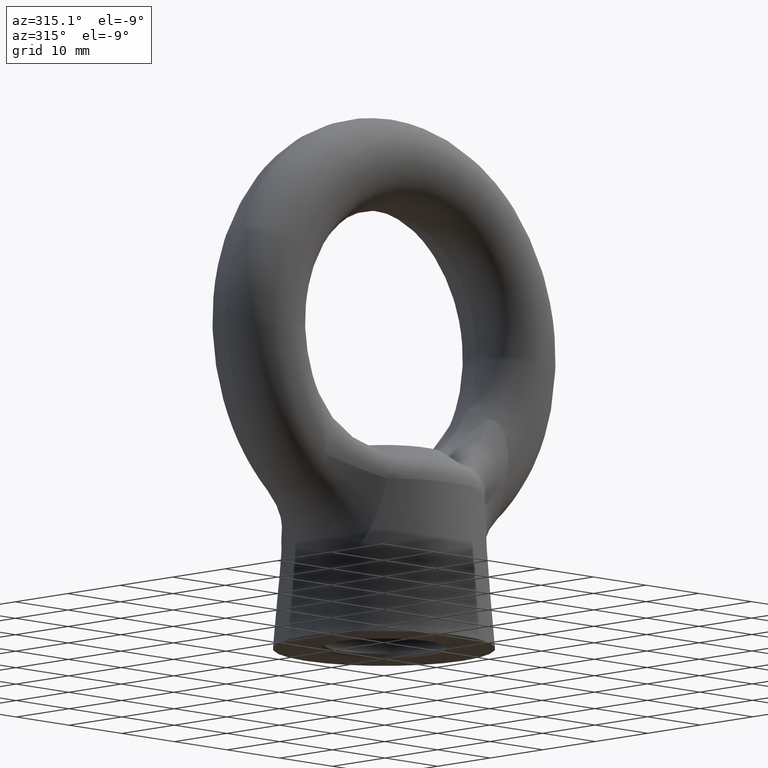
[diagram: clean part render]
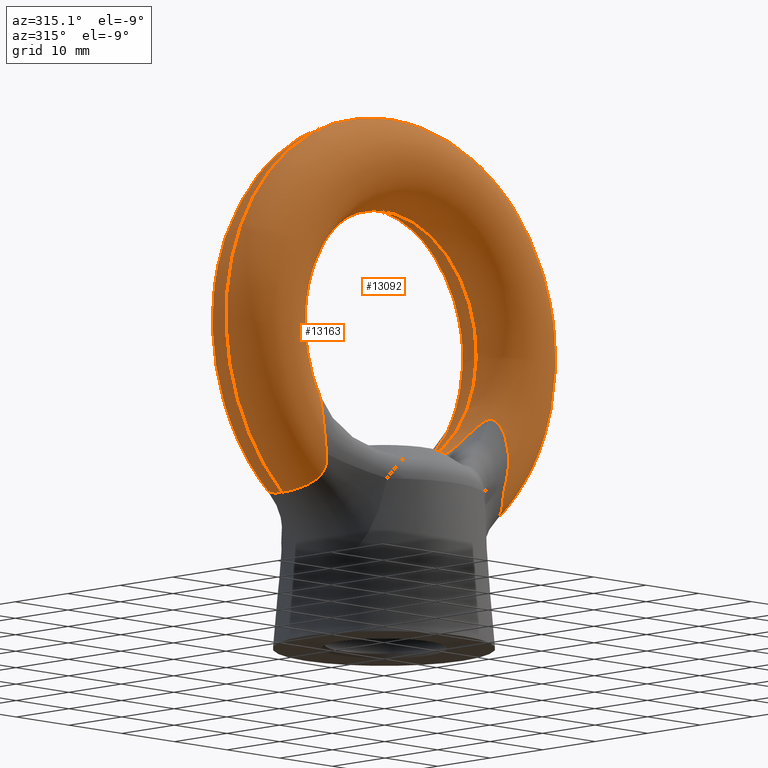
[diagram: same view with one multi-face feature highlighted, each face labeled with its STEP entity id]
A machine part, auxiliary view. The highlighted faces form ONE feature: a constant-radius fillet chain: 2 tangent blend faces with common blend radius 6.25 mm. The faces share edges in the B-rep.
Their STEP definitions:
[1] entity #13163 (Torus):
#7877 = CARTESIAN_POINT ( 'NONE',  ( 8.111039694346169800, 1.587437685473569900, -15.73774275576744800 ) ) ;
#7878 = CARTESIAN_POINT ( 'NONE',  ( 8.877050675783792100, 1.640796551750357500, -15.35871372021576200 ) ) ;
#7879 = CARTESIAN_POINT ( 'NONE',  ( 9.611557705893824600, 1.705393914827899100, -14.93065098489180200 ) ) ;
#7880 = CARTESIAN_POINT ( 'NONE',  ( 11.02122853489527700, 1.867217477117491600, -13.98403742893090400 ) ) ;
#7881 = CARTESIAN_POINT ( 'NONE',  ( 11.69746644432934000, 1.964454972726173500, -13.46338786075106200 ) ) ;
#7882 = CARTESIAN_POINT ( 'NONE',  ( 12.65455403378711100, 2.147803229258524300, -12.63896386355755500 ) ) ;
#7883 = CARTESIAN_POINT ( 'NONE',  ( 12.96483437946012500, 2.215326195808779500, -12.35649845964479700 ) ) ;
#7884 = CARTESIAN_POINT ( 'NONE',  ( 13.57045371240566000, 2.368919328573074100, -11.78069031534976400 ) ) ;
#7885 = CARTESIAN_POINT ( 'NONE',  ( 13.86567700764090800, 2.454779454984167100, -11.48716104974027100 ) ) ;
#7886 = CARTESIAN_POINT ( 'NONE',  ( 14.44652581673483600, 2.656681776269808700, -10.89839972138925200 ) ) ;
#7887 = CARTESIAN_POINT ( 'NONE',  ( 14.73188768323061600, 2.771871324656335100, -10.60192377022217700 ) ) ;
#7888 = CARTESIAN_POINT ( 'NONE',  ( 15.16392750144543900, 2.990702523390906400, -10.17705467096656200 ) ) ;
#7889 = CARTESIAN_POINT ( 'NONE',  ( 15.30744675396981700, 3.070880720529225900, -10.04012331732675100 ) ) ;
#7890 = CARTESIAN_POINT ( 'NONE',  ( 15.59790482079290200, 3.255144549051842300, -9.787617082536176100 ) ) ;
#7891 = CARTESIAN_POINT ( 'NONE',  ( 15.74643954804344400, 3.360181915901106400, -9.669975295900114200 ) ) ;
#7892 = CARTESIAN_POINT ( 'NONE',  ( 15.97394226603087300, 3.547933730310131500, -9.536845725587110000 ) ) ;
#7893 = CARTESIAN_POINT ( 'NONE',  ( 16.04966970211481200, 3.614860396510141300, -9.500435584846695000 ) ) ;
#7894 = CARTESIAN_POINT ( 'NONE',  ( 16.20189517686496600, 3.760407391947568900, -9.451324885078543400 ) ) ;
#7895 = CARTESIAN_POINT ( 'NONE',  ( 16.27760672172197300, 3.838501739769495400, -9.439438757284644800 ) ) ;
#7896 = CARTESIAN_POINT ( 'NONE',  ( 16.42137521235924100, 3.998558444761890500, -9.448072332348942800 ) ) ;
#7897 = CARTESIAN_POINT ( 'NONE',  ( 16.49066409196685300, 4.081966684756051400, -9.469041671484117000 ) ) ;
#7898 = CARTESIAN_POINT ( 'NONE',  ( 16.61557402954128200, 4.242521271216093100, -9.539345349481795500 ) ) ;
#7899 = CARTESIAN_POINT ( 'NONE',  ( 16.67307212306012300, 4.321899963471488500, -9.589288398273812000 ) ) ;
#7900 = CARTESIAN_POINT ( 'NONE',  ( 16.82653295781727500, 4.545061912940892200, -9.765227703158906500 ) ) ;
#7901 = CARTESIAN_POINT ( 'NONE',  ( 16.90759218076230000, 4.678616665513234600, -9.918353659678555100 ) ) ;
#7902 = CARTESIAN_POINT ( 'NONE',  ( 17.04430961157679300, 4.917960560620692900, -10.24969359798501700 ) ) ;
#7903 = CARTESIAN_POINT ( 'NONE',  ( 17.10050854641171400, 5.025166381319327700, -10.43014570516971200 ) ) ;
#7904 = CARTESIAN_POINT ( 'NONE',  ( 17.24581390449134600, 5.316780234065051400, -10.98790691262834300 ) ) ;
#7905 = CARTESIAN_POINT ( 'NONE',  ( 17.31327665560580100, 5.473647284645629400, -11.38331106369006200 ) ) ;
#7906 = CARTESIAN_POINT ( 'NONE',  ( 17.41708387142210100, 5.740757657185831400, -12.19624166517492400 ) ) ;
#7907 = CARTESIAN_POINT ( 'NONE',  ( 17.45183226864463700, 5.848603566488175300, -12.60985788679864300 ) ) ;
#7908 = CARTESIAN_POINT ( 'NONE',  ( 17.49422237156415600, 6.024730697094860000, -13.44814161974023700 ) ) ;
#7909 = CARTESIAN_POINT ( 'NONE',  ( 17.50153390053537100, 6.092908435521232800, -13.87502652674233000 ) ) ;
#7910 = CARTESIAN_POINT ( 'NONE',  ( 17.48855206723205000, 6.192231163593309200, -14.72638065050605000 ) ) ;
#7911 = CARTESIAN_POINT ( 'NONE',  ( 17.46836725311422400, 6.223556941446912700, -15.15085578333782800 ) ) ;
#7912 = CARTESIAN_POINT ( 'NONE',  ( 17.36497183959187400, 6.269493198029857200, -16.42038138290026300 ) ) ;
#7913 = CARTESIAN_POINT ( 'NONE',  ( 17.23954784160143200, 6.236109388039367700, -17.26159901721107200 ) ) ;
#7914 = CARTESIAN_POINT ( 'NONE',  ( 17.04277179703460000, 6.151012195224280000, -18.09589767904829900 ) ) ;
#7940 = B_SPLINE_CURVE_WITH_KNOTS ( 'NONE', 3,
 ( #7914, #7913, #7912, #7911, #7910, #7909, #7908, #7907, #7906, #7905, #7904, #7903, #7902, #7901, #7900, #7899, #7898, #7897, #7896, #7895, #7894, #7893, #7892, #7891, #7890, #7889, #7888, #7887, #7886, #7885, #7884, #7883, #7882, #7881, #7880, #7879, #7878, #7877 ),
 .UNSPECIFIED., .F., .F.,
 ( 4, 2, 2, 2, 2, 2, 2, 2, 2, 2, 2, 2, 2, 2, 2, 2, 2, 2, 4 ),
 ( 0.0000000000000000000, 0.002547673243820209100, 0.003821509865730318400, 0.005095346487640427800, 0.006369183109550535800, 0.007643019731460645600, 0.008279938042415703500, 0.008916856353370760500, 0.009235315508848292500, 0.009553774664325822800, 0.009872233819803353000, 0.01019069297528088500, 0.01082761128623595200, 0.01146452959719102000, 0.01273836621910116500, 0.01401220284101131200, 0.01528603946292145600, 0.01783371270674174300, 0.02038138595056202700 ),
 .UNSPECIFIED. ) ;
#7941 = CARTESIAN_POINT ( 'NONE',  ( 17.04277179703460000, 6.151012195224280000, -18.09589767904829900 ) ) ;
#7942 = CARTESIAN_POINT ( 'NONE',  ( 16.95311205554918000, 6.112238205607139800, -18.47604050845937700 ) ) ;
#7943 = CARTESIAN_POINT ( 'NONE',  ( 16.89125194217588400, 6.057159217524243500, -18.86162937785950400 ) ) ;
#7944 = CARTESIAN_POINT ( 'NONE',  ( 16.87500171211553000, 5.927312403113512000, -19.43398348306588000 ) ) ;
#7945 = CARTESIAN_POINT ( 'NONE',  ( 16.88267183032699100, 5.875723234500640000, -19.62415516973145600 ) ) ;
#7946 = CARTESIAN_POINT ( 'NONE',  ( 16.92664900067186200, 5.754983130849093500, -19.98972230802001000 ) ) ;
#7947 = CARTESIAN_POINT ( 'NONE',  ( 16.96285689485826600, 5.685539577687730000, -20.16659089490268600 ) ) ;
#7948 = CARTESIAN_POINT ( 'NONE',  ( 17.06323072682811700, 5.524901373026971800, -20.50722626260734000 ) ) ;
#7949 = CARTESIAN_POINT ( 'NONE',  ( 17.12762721360508800, 5.433500076670242200, -20.67062729624655400 ) ) ;
#7950 = CARTESIAN_POINT ( 'NONE',  ( 17.27456490243410800, 5.234201629986116300, -20.97250123242061200 ) ) ;
#7951 = CARTESIAN_POINT ( 'NONE',  ( 17.35806445011386100, 5.124824790626980200, -21.11355117864467000 ) ) ;
#7952 = CARTESIAN_POINT ( 'NONE',  ( 17.62311183871156900, 4.774557247408188800, -21.50293335712017400 ) ) ;
#7953 = CARTESIAN_POINT ( 'NONE',  ( 17.81709783172027500, 4.513381910449389500, -21.71768966841167300 ) ) ;
#7954 = CARTESIAN_POINT ( 'NONE',  ( 18.19918300366497700, 3.937557177171242500, -22.08753799249271000 ) ) ;
#7955 = CARTESIAN_POINT ( 'NONE',  ( 18.38228753433401500, 3.630914670358939200, -22.23753078786986800 ) ) ;
#7956 = CARTESIAN_POINT ( 'NONE',  ( 18.63069753655396700, 3.142423178963219300, -22.42695027002430300 ) ) ;
#7957 = CARTESIAN_POINT ( 'NONE',  ( 18.70921020355955000, 2.974811561932972500, -22.48399402095879300 ) ) ;
#7965 = CARTESIAN_POINT ( 'NONE',  ( 18.85581844273030000, 2.629619371804272200, -22.58720285964652400 ) ) ;
#7966 = CARTESIAN_POINT ( 'NONE',  ( 18.92418516439107300, 2.451129391184469600, -22.63353181231373800 ) ) ;
#7967 = CARTESIAN_POINT ( 'NONE',  ( 19.10775450492447200, 1.909922827401024000, -22.75509216573017200 ) ) ;
#7968 = CARTESIAN_POINT ( 'NONE',  ( 19.20248790463329400, 1.539889588704346000, -22.81392465897806000 ) ) ;
#7969 = CARTESIAN_POINT ( 'NONE',  ( 17.04277179703460000, 6.151012195224280000, -18.09589767904829900 ) ) ;
#7972 = CARTESIAN_POINT ( 'NONE',  ( 19.33119322631015500, 0.7809759802542160000, -22.89297971279859900 ) ) ;
#7973 = CARTESIAN_POINT ( 'NONE',  ( 19.36485179142093900, 0.3877032855326346100, -22.91293335861419300 ) ) ;
#7974 = CARTESIAN_POINT ( 'NONE',  ( 19.36485179142080400, -2.264111036967491900E-012, -22.91293335861412200 ) ) ;
#7975 = B_SPLINE_CURVE_WITH_KNOTS ( 'NONE', 3,
 ( #7974, #7973, #7972, #7968, #7967, #7966, #7965, #7957, #7956, #7955, #7954, #7953, #7952, #7951, #7950, #7949, #7948, #7947, #7946, #7945, #7944, #7943, #7942, #7941 ),
 .UNSPECIFIED., .F., .F.,
 ( 4, 2, 2, 2, 2, 2, 2, 2, 2, 2, 2, 4 ),
 ( 0.009352304537785015000, 0.01052074067515671900, 0.01168917681252842200, 0.01227339488121427500, 0.01285761294990012600, 0.01402604908727183600, 0.01519448522464354400, 0.01577870329332940100, 0.01636292136201525700, 0.01694713943070111000, 0.01753135749938696700, 0.01869979363675867600 ),
 .UNSPECIFIED. ) ;
#12492 = CARTESIAN_POINT ( 'NONE',  ( -17.09439175025056900, 5.013363293265662400, -10.40955110482752500 ) ) ;
#12493 = CARTESIAN_POINT ( 'NONE',  ( -17.03715011562819700, 4.904719203633745500, -10.22887495143929600 ) ) ;
#12494 = CARTESIAN_POINT ( 'NONE',  ( -16.89826487496196300, 4.663084896868124200, -9.899654922247412600 ) ) ;
#12495 = CARTESIAN_POINT ( 'NONE',  ( -16.81493675885698000, 4.526757330273071900, -9.746578786266630000 ) ) ;
#12496 = CARTESIAN_POINT ( 'NONE',  ( -16.65781289992850500, 4.300586411085207700, -9.575050532782443100 ) ) ;
#12497 = CARTESIAN_POINT ( 'NONE',  ( -16.59890712237342200, 4.220182988391110600, -9.527075591415290000 ) ) ;
#12498 = CARTESIAN_POINT ( 'NONE',  ( -16.47078785150448600, 4.057639141829226600, -9.461710667581142400 ) ) ;
#12499 = CARTESIAN_POINT ( 'NONE',  ( -16.40123005739350500, 3.975077192505356700, -9.444081537217448000 ) ) ;
#12500 = CARTESIAN_POINT ( 'NONE',  ( -16.18019810619075800, 3.732719797247222800, -9.440621465775516100 ) ) ;
#12501 = CARTESIAN_POINT ( 'NONE',  ( -16.02313715277433200, 3.586749817764413700, -9.504876318892193900 ) ) ;
#12502 = CARTESIAN_POINT ( 'NONE',  ( -15.72250592268966900, 3.342542114641776400, -9.687751591404120800 ) ) ;
#12503 = CARTESIAN_POINT ( 'NONE',  ( -15.57400674776673500, 3.238809136846752900, -9.807060328859115800 ) ) ;
#12504 = CARTESIAN_POINT ( 'NONE',  ( -15.28085567527491800, 3.055408538262048200, -10.06482561417770100 ) ) ;
#12505 = CARTESIAN_POINT ( 'NONE',  ( -15.13765308737072400, 2.976593723816712600, -10.20241387556497000 ) ) ;
#12506 = CARTESIAN_POINT ( 'NONE',  ( -14.70917673538873600, 2.762201382763405100, -10.62535612887652400 ) ) ;
#12507 = CARTESIAN_POINT ( 'NONE',  ( -14.42488092375795700, 2.648333875802509200, -10.92059145458517100 ) ) ;
#12508 = CARTESIAN_POINT ( 'NONE',  ( -13.84355405973236100, 2.447978338930086200, -11.50931385154766700 ) ) ;
#12509 = CARTESIAN_POINT ( 'NONE',  ( -13.54699932117073000, 2.362357481828072800, -11.80366577606515200 ) ) ;
#12510 = CARTESIAN_POINT ( 'NONE',  ( -12.93692658897605300, 2.208915950697682500, -12.38229760324862700 ) ) ;
#12511 = CARTESIAN_POINT ( 'NONE',  ( -12.62566730780290700, 2.141807837083095300, -12.66469655626187300 ) ) ;
#12512 = CARTESIAN_POINT ( 'NONE',  ( -11.67016064369423100, 1.960211869483214500, -13.48508992466458500 ) ) ;
#12513 = CARTESIAN_POINT ( 'NONE',  ( -11.00414795365064100, 1.865057928520018400, -13.99615391087029600 ) ) ;
#12514 = CARTESIAN_POINT ( 'NONE',  ( -9.607297013871303200, 1.705106647830315400, -14.93285550772168500 ) ) ;
#12515 = CARTESIAN_POINT ( 'NONE',  ( -8.876682196791096000, 1.640770884205409600, -15.35889604689332600 ) ) ;
#12516 = CARTESIAN_POINT ( 'NONE',  ( -8.111039694346169800, 1.587437685473575000, -15.73774275576744800 ) ) ;
#12517 = CARTESIAN_POINT ( 'NONE',  ( -17.04277179703460000, 6.151012195224280000, -18.09589767904829900 ) ) ;
#12518 = B_SPLINE_CURVE_WITH_KNOTS ( 'NONE', 3,
 ( #12516, #12515, #12514, #12513, #12512, #12511, #12510, #12509, #12508, #12507, #12506, #12505, #12504, #12503, #12502, #12501, #12500, #12499, #12498, #12497, #12496, #12495, #12494, #12493, #12492, #12567, #12566, #12565, #12564, #12563, #12562, #12561, #12560, #12559, #12558, #12557 ),
 .UNSPECIFIED., .F., .F.,
 ( 4, 2, 2, 2, 2, 2, 2, 2, 2, 2, 2, 2, 2, 2, 2, 2, 2, 4 ),
 ( 0.0000000000000000000, 0.002532923632758627900, 0.005065847265517255800, 0.006332309081896571500, 0.007598770898275888100, 0.008865232714655203700, 0.009498463622844859400, 0.01013169453103451500, 0.01076492543922417200, 0.01108154089331900500, 0.01139815634741383900, 0.01203138725560350100, 0.01266461816379316000, 0.01393107998017248200, 0.01519754179655180200, 0.01773046542931044600, 0.01899692724568977400, 0.02026338906206910300 ),
 .UNSPECIFIED. ) ;
#12530 = CARTESIAN_POINT ( 'NONE',  ( -19.20398942362605200, 1.533535957191950000, -22.81485941853018000 ) ) ;
#12531 = CARTESIAN_POINT ( 'NONE',  ( -19.10710975601693600, 1.911798821237023800, -22.75466404671359700 ) ) ;
#12532 = CARTESIAN_POINT ( 'NONE',  ( -18.86374112916451700, 2.629357814327272400, -22.59350669302708400 ) ) ;
#12533 = CARTESIAN_POINT ( 'NONE',  ( -18.71669795624355000, 2.972925421500441300, -22.49244585332153800 ) ) ;
#12534 = CARTESIAN_POINT ( 'NONE',  ( -18.38260925855518800, 3.630658305006376100, -22.23785736102296800 ) ) ;
#12535 = CARTESIAN_POINT ( 'NONE',  ( -18.19707127001715500, 3.940735206080624700, -22.08548962799375600 ) ) ;
#12536 = CARTESIAN_POINT ( 'NONE',  ( -17.91373961735210700, 4.367739317010738800, -21.81123848703569800 ) ) ;
#12537 = CARTESIAN_POINT ( 'NONE',  ( -17.81819513584930800, 4.504309705674773800, -21.71187117026612900 ) ) ;
#12538 = CARTESIAN_POINT ( 'NONE',  ( -17.62888353383863600, 4.765889005356906500, -21.49313357080669500 ) ) ;
#12539 = CARTESIAN_POINT ( 'NONE',  ( -17.53480404490485300, 4.891260074294396400, -21.37323152869047500 ) ) ;
#12540 = CARTESIAN_POINT ( 'NONE',  ( -17.35756464424424900, 5.125483688448048800, -21.11278532567025200 ) ) ;
#12541 = CARTESIAN_POINT ( 'NONE',  ( -17.27416151253787600, 5.234749343787799900, -20.97166800601691600 ) ) ;
#12542 = CARTESIAN_POINT ( 'NONE',  ( -17.12806355700545800, 5.432907666622764300, -20.67152822247151200 ) ) ;
#12543 = CARTESIAN_POINT ( 'NONE',  ( -17.06484824523459000, 5.522513536142704500, -20.51176390515909600 ) ) ;
#12544 = CARTESIAN_POINT ( 'NONE',  ( -16.96387995250271500, 5.683706637746454700, -20.17098986080450000 ) ) ;
#12545 = CARTESIAN_POINT ( 'NONE',  ( -16.92655022206212900, 5.755080137274556600, -19.98962445138507200 ) ) ;
#12546 = CARTESIAN_POINT ( 'NONE',  ( -16.88238577102826500, 5.876684329007404500, -19.62104768280253700 ) ) ;
#12547 = CARTESIAN_POINT ( 'NONE',  ( -16.87493281315705200, 5.928100269409070800, -19.43095498714880900 ) ) ;
#12553 = CARTESIAN_POINT ( 'NONE',  ( -16.89169284103761400, 6.057968228145902900, -18.85716227443033700 ) ) ;
#12554 = CARTESIAN_POINT ( 'NONE',  ( -16.95313379084433000, 6.112247605189320900, -18.47594835431687300 ) ) ;
#12555 = CARTESIAN_POINT ( 'NONE',  ( -17.04277179703460000, 6.151012195224280000, -18.09589767904829900 ) ) ;
#12556 = B_SPLINE_CURVE_WITH_KNOTS ( 'NONE', 3,
 ( #12555, #12554, #12553, #12547, #12546, #12545, #12544, #12543, #12542, #12541, #12540, #12539, #12538, #12537, #12536, #12535, #12534, #12533, #12532, #12531, #12530, #12596, #12595, #12594 ),
 .UNSPECIFIED., .F., .F.,
 ( 4, 2, 2, 2, 2, 2, 2, 2, 2, 2, 2, 4 ),
 ( 0.0000000000000000000, 0.001169038067223129000, 0.001753557100834693200, 0.002338076134446257200, 0.002922595168057821200, 0.003507114201669385600, 0.004091633235280949100, 0.004676152268892513500, 0.005845190336115646700, 0.007014228403338779900, 0.008183266470561913900, 0.009352304537785046200 ),
 .UNSPECIFIED. ) ;
#12557 = CARTESIAN_POINT ( 'NONE',  ( -17.04277179703460000, 6.151012195224280000, -18.09589767904829900 ) ) ;
#12558 = CARTESIAN_POINT ( 'NONE',  ( -17.14134282389802900, 6.193639933257354200, -17.67797243825434400 ) ) ;
#12559 = CARTESIAN_POINT ( 'NONE',  ( -17.22218837957598200, 6.223411038292580200, -17.25672796667097900 ) ) ;
#12560 = CARTESIAN_POINT ( 'NONE',  ( -17.35217542595722400, 6.253667041882924800, -16.40805854493315900 ) ) ;
#12561 = CARTESIAN_POINT ( 'NONE',  ( -17.40140720904229700, 6.254127769587931600, -15.97950670511449500 ) ) ;
#12562 = CARTESIAN_POINT ( 'NONE',  ( -17.50459713303730400, 6.205747314589184600, -14.69247961850472700 ) ) ;
#12563 = CARTESIAN_POINT ( 'NONE',  ( -17.51517308195389000, 6.109353692984738500, -13.84437779262218600 ) ) ;
#12564 = CARTESIAN_POINT ( 'NONE',  ( -17.45039198008589300, 5.843876852509534800, -12.59074679657611100 ) ) ;
#12565 = CARTESIAN_POINT ( 'NONE',  ( -17.41481085278458000, 5.734211361053390900, -12.17316483598339100 ) ) ;
#12566 = CARTESIAN_POINT ( 'NONE',  ( -17.30975759477318500, 5.465329497170234400, -11.36132989875053700 ) ) ;
#12567 = CARTESIAN_POINT ( 'NONE',  ( -17.24190867375001400, 5.308071033144075000, -10.96759668570014800 ) ) ;
#12594 = CARTESIAN_POINT ( 'NONE',  ( -19.36485179142080400, 2.264335115502151900E-012, -22.91293335861412200 ) ) ;
#12595 = CARTESIAN_POINT ( 'NONE',  ( -19.36485179142067300, 0.3879030141946325200, -22.91293335861404000 ) ) ;
#12596 = CARTESIAN_POINT ( 'NONE',  ( -19.33225393210249600, 0.7721711207355761400, -22.89361850442664400 ) ) ;
#13025 = VERTEX_POINT ( 'NONE', #13172 ) ;
#13029 = EDGE_CURVE ( 'NONE', #13025, #13073, #13299, .T. ) ;
#13032 = EDGE_CURVE ( 'NONE', #13071, #13034, #13247, .T. ) ;
#13034 = VERTEX_POINT ( 'NONE', #13240 ) ;
#13071 = VERTEX_POINT ( 'NONE', #13470 ) ;
#13073 = VERTEX_POINT ( 'NONE', #13454 ) ;
#13074 = EDGE_CURVE ( 'NONE', #13073, #13071, #13606, .T. ) ;
#13080 = EDGE_CURVE ( 'NONE', #13097, #13081, #13557, .T. ) ;
#13081 = VERTEX_POINT ( 'NONE', #13552 ) ;
#13097 = VERTEX_POINT ( 'NONE', #13423 ) ;
#13163 = ADVANCED_FACE ( 'NONE', ( #13639 ), #13616, .T. ) ;
#13172 = CARTESIAN_POINT ( 'NONE',  ( 8.111039694346169800, 1.587437685473569900, -15.73774275576744800 ) ) ;
#13218 = EDGE_LOOP ( 'NONE', ( #13219, #13220, #13228, #13230, #13231, #13232, #13305, #13308 ) ) ;
#13219 = ORIENTED_EDGE ( 'NONE', *, *, #13080, .F. ) ;
#13220 = ORIENTED_EDGE ( 'NONE', *, *, #13221, .T. ) ;
#13221 = EDGE_CURVE ( 'NONE', #13097, #13227, #7975, .T. ) ;
#13227 = VERTEX_POINT ( 'NONE', #7969 ) ;
#13228 = ORIENTED_EDGE ( 'NONE', *, *, #13229, .T. ) ;
#13229 = EDGE_CURVE ( 'NONE', #13227, #13025, #7940, .T. ) ;
#13230 = ORIENTED_EDGE ( 'NONE', *, *, #13029, .T. ) ;
#13231 = ORIENTED_EDGE ( 'NONE', *, *, #13074, .T. ) ;
#13232 = ORIENTED_EDGE ( 'NONE', *, *, #13032, .T. ) ;
#13240 = CARTESIAN_POINT ( 'NONE',  ( -8.111039694346169800, 1.587437685473575000, -15.73774275576744800 ) ) ;
#13243 = CARTESIAN_POINT ( 'NONE',  ( -8.111039694346169800, 1.587437685473575000, -15.73774275576744800 ) ) ;
#13244 = CARTESIAN_POINT ( 'NONE',  ( -8.034739435842125100, 1.067064728757684900, -15.62333490523499800 ) ) ;
#13245 = CARTESIAN_POINT ( 'NONE',  ( -8.000004606485253700, 0.5378854802323680400, -15.56437998610500500 ) ) ;
#13246 = CARTESIAN_POINT ( 'NONE',  ( -8.000000000000000000, 0.0000000000000000000, -15.56437700000010200 ) ) ;
#13247 = B_SPLINE_CURVE_WITH_KNOTS ( 'NONE', 3,
 ( #13246, #13245, #13244, #13243 ),
 .UNSPECIFIED., .F., .F.,
 ( 4, 4 ),
 ( 0.008607283311470995100, 0.01020782760571693900 ),
 .UNSPECIFIED. ) ;
#13248 = CARTESIAN_POINT ( 'NONE',  ( 8.000000000000000000, 0.0000000000000000000, -15.56437700000015000 ) ) ;
#13249 = CARTESIAN_POINT ( 'NONE',  ( 8.000004650171266700, 0.2682021957783509200, -15.56438005725637200 ) ) ;
#13250 = CARTESIAN_POINT ( 'NONE',  ( 8.009119476214849000, 0.5383928130978464800, -15.57938130876970800 ) ) ;
#13251 = CARTESIAN_POINT ( 'NONE',  ( 8.045737007442706800, 1.068063597566315500, -15.63773547490219700 ) ) ;
#13252 = CARTESIAN_POINT ( 'NONE',  ( 8.073215190745683500, 1.329471996224379700, -15.68102708744299000 ) ) ;
#13253 = CARTESIAN_POINT ( 'NONE',  ( 8.111039694346169800, 1.587437685473569900, -15.73774275576744800 ) ) ;
#13299 = B_SPLINE_CURVE_WITH_KNOTS ( 'NONE', 3,
 ( #13253, #13252, #13251, #13250, #13249, #13248 ),
 .UNSPECIFIED., .F., .F.,
 ( 4, 2, 4 ),
 ( 0.007011151935412299900, 0.007809217623441650100, 0.008607283311471000300 ),
 .UNSPECIFIED. ) ;
#13305 = ORIENTED_EDGE ( 'NONE', *, *, #13306, .T. ) ;
#13306 = EDGE_CURVE ( 'NONE', #13034, #13307, #12518, .T. ) ;
#13307 = VERTEX_POINT ( 'NONE', #12517 ) ;
#13308 = ORIENTED_EDGE ( 'NONE', *, *, #13309, .T. ) ;
#13309 = EDGE_CURVE ( 'NONE', #13307, #13081, #12556, .T. ) ;
#13423 = CARTESIAN_POINT ( 'NONE',  ( 19.36485179142080400, -2.264111036967491900E-012, -22.91293335861412200 ) ) ;
#13454 = CARTESIAN_POINT ( 'NONE',  ( 8.000000000000000000, 0.0000000000000000000, -15.56437700000015000 ) ) ;
#13470 = CARTESIAN_POINT ( 'NONE',  ( -8.000000000000000000, 0.0000000000000000000, -15.56437700000010200 ) ) ;
#13552 = CARTESIAN_POINT ( 'NONE',  ( -19.36485179142080400, 2.264335115502151900E-012, -22.91293335861412200 ) ) ;
#13553 = DIRECTION ( 'NONE',  ( 0.0000000000000000000, 0.0000000000000000000, -1.000000000000000000 ) ) ;
#13554 = DIRECTION ( 'NONE',  ( 0.0000000000000000000, -1.000000000000000000, 0.0000000000000000000 ) ) ;
#13555 = CARTESIAN_POINT ( 'NONE',  ( 0.0000000000000000000, 0.0000000000000000000, 0.0000000000000000000 ) ) ;
#13556 = AXIS2_PLACEMENT_3D ( 'NONE', #13555, #13554, #13553 ) ;
#13557 = CIRCLE ( 'NONE', #13556, 29.99999999999974800 ) ;
#13602 = DIRECTION ( 'NONE',  ( 0.0000000000000000000, 0.0000000000000000000, -1.000000000000000000 ) ) ;
#13603 = DIRECTION ( 'NONE',  ( 0.0000000000000000000, -1.000000000000000000, 0.0000000000000000000 ) ) ;
#13604 = CARTESIAN_POINT ( 'NONE',  ( 0.0000000000000000000, 7.653789711389857900E-016, 0.0000000000000000000 ) ) ;
#13605 = AXIS2_PLACEMENT_3D ( 'NONE', #13604, #13603, #13602 ) ;
#13606 = CIRCLE ( 'NONE', #13605, 17.49999999999975100 ) ;
#13616 = TOROIDAL_SURFACE ( 'NONE', #13638, 23.74999999999975100, 6.250000000000000000 ) ;
#13617 = DIRECTION ( 'NONE',  ( 0.0000000000000000000, 0.0000000000000000000, -1.000000000000000000 ) ) ;
#13618 = DIRECTION ( 'NONE',  ( 0.0000000000000000000, -1.000000000000000000, 0.0000000000000000000 ) ) ;
#13619 = CARTESIAN_POINT ( 'NONE',  ( 0.0000000000000000000, 0.0000000000000000000, 0.0000000000000000000 ) ) ;
#13638 = AXIS2_PLACEMENT_3D ( 'NONE', #13619, #13618, #13617 ) ;
#13639 = FACE_OUTER_BOUND ( 'NONE', #13218, .T. ) ;
[2] entity #13092 (Torus):
#13069 = ORIENTED_EDGE ( 'NONE', *, *, #13070, .T. ) ;
#13070 = EDGE_CURVE ( 'NONE', #13079, #13071, #13471, .T. ) ;
#13071 = VERTEX_POINT ( 'NONE', #13470 ) ;
#13072 = ORIENTED_EDGE ( 'NONE', *, *, #13074, .F. ) ;
#13073 = VERTEX_POINT ( 'NONE', #13454 ) ;
#13074 = EDGE_CURVE ( 'NONE', #13073, #13071, #13606, .T. ) ;
#13075 = ORIENTED_EDGE ( 'NONE', *, *, #13085, .T. ) ;
#13077 = ORIENTED_EDGE ( 'NONE', *, *, #13078, .T. ) ;
#13078 = EDGE_CURVE ( 'NONE', #13084, #13079, #13601, .T. ) ;
#13079 = VERTEX_POINT ( 'NONE', #13600 ) ;
#13080 = EDGE_CURVE ( 'NONE', #13097, #13081, #13557, .T. ) ;
#13081 = VERTEX_POINT ( 'NONE', #13552 ) ;
#13082 = ORIENTED_EDGE ( 'NONE', *, *, #13083, .T. ) ;
#13083 = EDGE_CURVE ( 'NONE', #13081, #13084, #13541, .T. ) ;
#13084 = VERTEX_POINT ( 'NONE', #13542 ) ;
#13085 = EDGE_CURVE ( 'NONE', #13073, #13086, #13536, .T. ) ;
#13086 = VERTEX_POINT ( 'NONE', #13537 ) ;
#13087 = ORIENTED_EDGE ( 'NONE', *, *, #13088, .T. ) ;
#13088 = EDGE_CURVE ( 'NONE', #13086, #13098, #13515, .T. ) ;
#13092 = ADVANCED_FACE ( 'NONE', ( #13429 ), #13427, .T. ) ;
#13093 = EDGE_LOOP ( 'NONE', ( #13094, #13096, #13082, #13077, #13069, #13072, #13075, #13087 ) ) ;
#13094 = ORIENTED_EDGE ( 'NONE', *, *, #13095, .T. ) ;
#13095 = EDGE_CURVE ( 'NONE', #13098, #13097, #13422, .T. ) ;
#13096 = ORIENTED_EDGE ( 'NONE', *, *, #13080, .T. ) ;
#13097 = VERTEX_POINT ( 'NONE', #13423 ) ;
#13098 = VERTEX_POINT ( 'NONE', #13421 ) ;
#13391 = CARTESIAN_POINT ( 'NONE',  ( 19.36485179142080400, -2.264111036967491900E-012, -22.91293335861412200 ) ) ;
#13392 = CARTESIAN_POINT ( 'NONE',  ( 19.36485179142067300, -0.3879030141946318600, -22.91293335861403000 ) ) ;
#13393 = CARTESIAN_POINT ( 'NONE',  ( 19.33225393210249600, -0.7721711207355783600, -22.89361850442665500 ) ) ;
#13394 = CARTESIAN_POINT ( 'NONE',  ( 19.20398942362603700, -1.533535957191949800, -22.81485941853016900 ) ) ;
#13395 = CARTESIAN_POINT ( 'NONE',  ( 19.10710975601693600, -1.911798821237025200, -22.75466404671360400 ) ) ;
#13396 = CARTESIAN_POINT ( 'NONE',  ( 18.86374112916450900, -2.629357814327273300, -22.59350669302706600 ) ) ;
#13397 = CARTESIAN_POINT ( 'NONE',  ( 18.71669795624354300, -2.972925421500443000, -22.49244585332153400 ) ) ;
#13398 = CARTESIAN_POINT ( 'NONE',  ( 18.38260925855518500, -3.630658305006380100, -22.23785736102297200 ) ) ;
#13399 = CARTESIAN_POINT ( 'NONE',  ( 18.19707127001715500, -3.940735206080630000, -22.08548962799375600 ) ) ;
#13400 = CARTESIAN_POINT ( 'NONE',  ( 17.91373961735210000, -4.367739317010743200, -21.81123848703569500 ) ) ;
#13401 = CARTESIAN_POINT ( 'NONE',  ( 17.81819513584931200, -4.504309705674778300, -21.71187117026612900 ) ) ;
#13402 = CARTESIAN_POINT ( 'NONE',  ( 17.62888353383861800, -4.765889005356911800, -21.49313357080668000 ) ) ;
#13403 = CARTESIAN_POINT ( 'NONE',  ( 17.53480404490484500, -4.891260074294403500, -21.37323152869046400 ) ) ;
#13404 = CARTESIAN_POINT ( 'NONE',  ( 17.35756464424425300, -5.125483688448054100, -21.11278532567024500 ) ) ;
#13405 = CARTESIAN_POINT ( 'NONE',  ( 17.27416151253788000, -5.234749343787800800, -20.97166800601691600 ) ) ;
#13406 = CARTESIAN_POINT ( 'NONE',  ( 17.12806355700545800, -5.432907666622767800, -20.67152822247150100 ) ) ;
#13407 = CARTESIAN_POINT ( 'NONE',  ( 17.06484824523459000, -5.522513536142709800, -20.51176390515908200 ) ) ;
#13408 = CARTESIAN_POINT ( 'NONE',  ( 16.96387995250271500, -5.683706637746459100, -20.17098986080447900 ) ) ;
#13409 = CARTESIAN_POINT ( 'NONE',  ( 16.92655022206211900, -5.755080137274559200, -19.98962445138506200 ) ) ;
#13410 = CARTESIAN_POINT ( 'NONE',  ( 16.88238577102826500, -5.876684329007409800, -19.62104768280253700 ) ) ;
#13417 = CARTESIAN_POINT ( 'NONE',  ( 16.87493281315704900, -5.928100269409066300, -19.43095498714879800 ) ) ;
#13418 = CARTESIAN_POINT ( 'NONE',  ( 16.89169284103761000, -6.057968228145899300, -18.85716227443033000 ) ) ;
#13419 = CARTESIAN_POINT ( 'NONE',  ( 16.95313379084431900, -6.112247605189319100, -18.47594835431686600 ) ) ;
#13420 = CARTESIAN_POINT ( 'NONE',  ( 17.04277179703460000, -6.151012195224280000, -18.09589767904829900 ) ) ;
#13421 = CARTESIAN_POINT ( 'NONE',  ( 17.04277179703460000, -6.151012195224280000, -18.09589767904829900 ) ) ;
#13422 = B_SPLINE_CURVE_WITH_KNOTS ( 'NONE', 3,
 ( #13420, #13419, #13418, #13417, #13410, #13409, #13408, #13407, #13406, #13405, #13404, #13403, #13402, #13401, #13400, #13399, #13398, #13397, #13396, #13395, #13394, #13393, #13392, #13391 ),
 .UNSPECIFIED., .F., .F.,
 ( 4, 2, 2, 2, 2, 2, 2, 2, 2, 2, 2, 4 ),
 ( 0.0000000000000000000, 0.001169038067223127100, 0.001753557100834690200, 0.002338076134446253700, 0.002922595168057817300, 0.003507114201669380400, 0.004091633235280944800, 0.004676152268892507500, 0.005845190336115634600, 0.007014228403338760800, 0.008183266470561889600, 0.009352304537785015000 ),
 .UNSPECIFIED. ) ;
#13423 = CARTESIAN_POINT ( 'NONE',  ( 19.36485179142080400, -2.264111036967491900E-012, -22.91293335861412200 ) ) ;
#13424 = DIRECTION ( 'NONE',  ( 0.0000000000000000000, 0.0000000000000000000, -1.000000000000000000 ) ) ;
#13425 = DIRECTION ( 'NONE',  ( 0.0000000000000000000, -1.000000000000000000, 0.0000000000000000000 ) ) ;
#13426 = AXIS2_PLACEMENT_3D ( 'NONE', #13428, #13425, #13424 ) ;
#13427 = TOROIDAL_SURFACE ( 'NONE', #13426, 23.74999999999975100, 6.250000000000000000 ) ;
#13428 = CARTESIAN_POINT ( 'NONE',  ( 0.0000000000000000000, 0.0000000000000000000, 0.0000000000000000000 ) ) ;
#13429 = FACE_OUTER_BOUND ( 'NONE', #13093, .T. ) ;
#13451 = CARTESIAN_POINT ( 'NONE',  ( -8.045737007442703300, -1.068063597566312900, -15.63773547490219300 ) ) ;
#13452 = CARTESIAN_POINT ( 'NONE',  ( -8.073215190745678200, -1.329471996224376600, -15.68102708744298600 ) ) ;
#13453 = CARTESIAN_POINT ( 'NONE',  ( -8.111039694346160900, -1.587437685473565000, -15.73774275576744800 ) ) ;
#13454 = CARTESIAN_POINT ( 'NONE',  ( 8.000000000000000000, 0.0000000000000000000, -15.56437700000015000 ) ) ;
#13462 = CARTESIAN_POINT ( 'NONE',  ( 17.04277179703460000, -6.151012195224280000, -18.09589767904829900 ) ) ;
#13463 = CARTESIAN_POINT ( 'NONE',  ( 17.14134282389802500, -6.193639933257352400, -17.67797243825434000 ) ) ;
#13464 = CARTESIAN_POINT ( 'NONE',  ( 17.22218837957597500, -6.223411038292576700, -17.25672796667097200 ) ) ;
#13465 = CARTESIAN_POINT ( 'NONE',  ( 17.35217542595722400, -6.253667041882923000, -16.40805854493315900 ) ) ;
#13466 = CARTESIAN_POINT ( 'NONE',  ( 17.40140720904229000, -6.254127769587932500, -15.97950670511449500 ) ) ;
#13467 = CARTESIAN_POINT ( 'NONE',  ( 17.50459713303729700, -6.205747314589185500, -14.69247961850473200 ) ) ;
#13468 = CARTESIAN_POINT ( 'NONE',  ( 17.51517308195389000, -6.109353692984737600, -13.84437779262219300 ) ) ;
#13470 = CARTESIAN_POINT ( 'NONE',  ( -8.000000000000000000, 0.0000000000000000000, -15.56437700000010200 ) ) ;
#13471 = B_SPLINE_CURVE_WITH_KNOTS ( 'NONE', 3,
 ( #13453, #13452, #13451, #13609, #13608, #13607 ),
 .UNSPECIFIED., .F., .F.,
 ( 4, 2, 4 ),
 ( 0.007011151935412306000, 0.007809217623441650100, 0.008607283311470995100 ),
 .UNSPECIFIED. ) ;
#13476 = CARTESIAN_POINT ( 'NONE',  ( 17.45039198008589700, -5.843876852509538400, -12.59074679657612000 ) ) ;
#13477 = CARTESIAN_POINT ( 'NONE',  ( 17.41481085278458700, -5.734211361053395400, -12.17316483598339300 ) ) ;
#13478 = CARTESIAN_POINT ( 'NONE',  ( 17.30975759477319500, -5.465329497170240600, -11.36132989875054000 ) ) ;
#13479 = CARTESIAN_POINT ( 'NONE',  ( 17.24190867375002900, -5.308071033144079500, -10.96759668570014800 ) ) ;
#13480 = CARTESIAN_POINT ( 'NONE',  ( 17.09439175025058000, -5.013363293265668700, -10.40955110482752500 ) ) ;
#13481 = CARTESIAN_POINT ( 'NONE',  ( 17.03715011562820400, -4.904719203633753500, -10.22887495143930700 ) ) ;
#13482 = CARTESIAN_POINT ( 'NONE',  ( 16.89826487496196700, -4.663084896868132200, -9.899654922247419700 ) ) ;
#13483 = CARTESIAN_POINT ( 'NONE',  ( 16.81493675885699400, -4.526757330273079000, -9.746578786266638900 ) ) ;
#13484 = CARTESIAN_POINT ( 'NONE',  ( 16.65781289992851200, -4.300586411085213000, -9.575050532782443100 ) ) ;
#13485 = CARTESIAN_POINT ( 'NONE',  ( 16.59890712237342600, -4.220182988391112400, -9.527075591415297100 ) ) ;
#13486 = CARTESIAN_POINT ( 'NONE',  ( 16.47078785150447900, -4.057639141829227500, -9.461710667581147800 ) ) ;
#13487 = CARTESIAN_POINT ( 'NONE',  ( 16.40123005739349800, -3.975077192505347400, -9.444081537217437400 ) ) ;
#13488 = CARTESIAN_POINT ( 'NONE',  ( 16.18019810619075100, -3.732719797247217900, -9.440621465775503700 ) ) ;
#13489 = CARTESIAN_POINT ( 'NONE',  ( 16.02313715277431400, -3.586749817764413300, -9.504876318892199200 ) ) ;
#13490 = CARTESIAN_POINT ( 'NONE',  ( 15.72250592268965800, -3.342542114641776400, -9.687751591404126100 ) ) ;
#13496 = CARTESIAN_POINT ( 'NONE',  ( 15.57400674776673500, -3.238809136846755100, -9.807060328859117600 ) ) ;
#13497 = CARTESIAN_POINT ( 'NONE',  ( 15.28085567527491200, -3.055408538262048600, -10.06482561417770100 ) ) ;
#13498 = CARTESIAN_POINT ( 'NONE',  ( 15.13765308737072200, -2.976593723816713900, -10.20241387556497300 ) ) ;
#13499 = CARTESIAN_POINT ( 'NONE',  ( 14.70917673538873100, -2.762201382763406900, -10.62535612887652900 ) ) ;
#13500 = CARTESIAN_POINT ( 'NONE',  ( 14.42488092375795400, -2.648333875802516300, -10.92059145458517700 ) ) ;
#13501 = CARTESIAN_POINT ( 'NONE',  ( 13.84355405973236100, -2.447978338930093800, -11.50931385154767000 ) ) ;
#13502 = CARTESIAN_POINT ( 'NONE',  ( 13.54699932117073000, -2.362357481828071900, -11.80366577606515600 ) ) ;
#13503 = CARTESIAN_POINT ( 'NONE',  ( 12.93692658897605300, -2.208915950697682500, -12.38229760324862900 ) ) ;
#13504 = CARTESIAN_POINT ( 'NONE',  ( 12.62566730780291000, -2.141807837083096200, -12.66469655626187500 ) ) ;
#13505 = CARTESIAN_POINT ( 'NONE',  ( 11.67016064369422600, -1.960211869483216700, -13.48508992466458700 ) ) ;
#13506 = CARTESIAN_POINT ( 'NONE',  ( 11.00414795365064100, -1.865057928520021900, -13.99615391087030000 ) ) ;
#13507 = CARTESIAN_POINT ( 'NONE',  ( 9.607297013871297900, -1.705106647830318700, -14.93285550772168700 ) ) ;
#13508 = CARTESIAN_POINT ( 'NONE',  ( 8.876682196791099600, -1.640770884205409400, -15.35889604689332400 ) ) ;
#13513 = CARTESIAN_POINT ( 'NONE',  ( 8.111039694346169800, -1.587437685473579900, -15.73774275576744800 ) ) ;
#13515 = B_SPLINE_CURVE_WITH_KNOTS ( 'NONE', 3,
 ( #13513, #13508, #13507, #13506, #13505, #13504, #13503, #13502, #13501, #13500, #13499, #13498, #13497, #13496, #13490, #13489, #13488, #13487, #13486, #13485, #13484, #13483, #13482, #13481, #13480, #13479, #13478, #13477, #13476, #13468, #13467, #13466, #13465, #13464, #13463, #13462 ),
 .UNSPECIFIED., .F., .F.,
 ( 4, 2, 2, 2, 2, 2, 2, 2, 2, 2, 2, 2, 2, 2, 2, 2, 2, 4 ),
 ( 0.0000000000000000000, 0.002532923632758632700, 0.005065847265517265400, 0.006332309081896583600, 0.007598770898275901900, 0.008865232714655221100, 0.009498463622844882000, 0.01013169453103454500, 0.01076492543922420500, 0.01108154089331903400, 0.01139815634741386600, 0.01203138725560352900, 0.01266461816379318800, 0.01393107998017250100, 0.01519754179655181400, 0.01773046542931045300, 0.01899692724568977100, 0.02026338906206909300 ),
 .UNSPECIFIED. ) ;
#13517 = CARTESIAN_POINT ( 'NONE',  ( 8.111039694346169800, -1.587437685473579900, -15.73774275576744800 ) ) ;
#13518 = CARTESIAN_POINT ( 'NONE',  ( 8.034739435842126900, -1.067064728757689500, -15.62333490523499800 ) ) ;
#13519 = CARTESIAN_POINT ( 'NONE',  ( 8.000004606485253700, -0.5378854802323731500, -15.56437998610500500 ) ) ;
#13520 = CARTESIAN_POINT ( 'NONE',  ( 8.000000000000000000, 0.0000000000000000000, -15.56437700000015000 ) ) ;
#13521 = CARTESIAN_POINT ( 'NONE',  ( -17.04277179703460000, -6.151012195224270200, -18.09589767904829900 ) ) ;
#13522 = CARTESIAN_POINT ( 'NONE',  ( -16.95311205554917700, -6.112238205607139800, -18.47604050845937400 ) ) ;
#13523 = CARTESIAN_POINT ( 'NONE',  ( -16.89125194217589500, -6.057159217524242600, -18.86162937785950400 ) ) ;
#13524 = CARTESIAN_POINT ( 'NONE',  ( -16.87500171211552700, -5.927312403113511200, -19.43398348306587300 ) ) ;
#13525 = CARTESIAN_POINT ( 'NONE',  ( -16.88267183032699100, -5.875723234500640000, -19.62415516973145900 ) ) ;
#13526 = CARTESIAN_POINT ( 'NONE',  ( -16.92664900067185800, -5.754983130849096200, -19.98972230802001000 ) ) ;
#13527 = CARTESIAN_POINT ( 'NONE',  ( -16.96285689485827000, -5.685539577687731800, -20.16659089490268600 ) ) ;
#13528 = CARTESIAN_POINT ( 'NONE',  ( -17.06323072682812000, -5.524901373026975400, -20.50722626260734300 ) ) ;
#13529 = CARTESIAN_POINT ( 'NONE',  ( -17.12762721360508400, -5.433500076670241300, -20.67062729624655800 ) ) ;
#13530 = CARTESIAN_POINT ( 'NONE',  ( -18.92418516439107300, -2.451129391184467800, -22.63353181231373100 ) ) ;
#13531 = CARTESIAN_POINT ( 'NONE',  ( -19.10775450492446800, -1.909922827401022700, -22.75509216573016100 ) ) ;
#13532 = CARTESIAN_POINT ( 'NONE',  ( -19.20248790463329800, -1.539889588704345100, -22.81392465897806000 ) ) ;
#13533 = CARTESIAN_POINT ( 'NONE',  ( -19.33119322631015500, -0.7809759802542158800, -22.89297971279860300 ) ) ;
#13534 = CARTESIAN_POINT ( 'NONE',  ( -19.36485179142093600, -0.3877032855326345600, -22.91293335861418600 ) ) ;
#13535 = CARTESIAN_POINT ( 'NONE',  ( -19.36485179142080400, 2.264335115502151900E-012, -22.91293335861412200 ) ) ;
#13536 = B_SPLINE_CURVE_WITH_KNOTS ( 'NONE', 3,
 ( #13520, #13519, #13518, #13517 ),
 .UNSPECIFIED., .F., .F.,
 ( 4, 4 ),
 ( 0.008607283311471000300, 0.01020782760571694500 ),
 .UNSPECIFIED. ) ;
#13537 = CARTESIAN_POINT ( 'NONE',  ( 8.111039694346169800, -1.587437685473579900, -15.73774275576744800 ) ) ;
#13541 = B_SPLINE_CURVE_WITH_KNOTS ( 'NONE', 3,
 ( #13535, #13534, #13533, #13532, #13531, #13530, #13551, #13550, #13549, #13548, #13547, #13546, #13545, #13544, #13543, #13529, #13528, #13527, #13526, #13525, #13524, #13523, #13522, #13521 ),
 .UNSPECIFIED., .F., .F.,
 ( 4, 2, 2, 2, 2, 2, 2, 2, 2, 2, 2, 4 ),
 ( 0.009352304537785046200, 0.01052074067515675800, 0.01168917681252846700, 0.01227339488121432400, 0.01285761294990017700, 0.01402604908727189000, 0.01519448522464360600, 0.01577870329332946300, 0.01636292136201532300, 0.01694713943070118000, 0.01753135749938703600, 0.01869979363675875300 ),
 .UNSPECIFIED. ) ;
#13542 = CARTESIAN_POINT ( 'NONE',  ( -17.04277179703460000, -6.151012195224270200, -18.09589767904829900 ) ) ;
#13543 = CARTESIAN_POINT ( 'NONE',  ( -17.27456490243411100, -5.234201629986115400, -20.97250123242062300 ) ) ;
#13544 = CARTESIAN_POINT ( 'NONE',  ( -17.35806445011386500, -5.124824790626981000, -21.11355117864467300 ) ) ;
#13545 = CARTESIAN_POINT ( 'NONE',  ( -17.62311183871158300, -4.774557247408192300, -21.50293335712018500 ) ) ;
#13546 = CARTESIAN_POINT ( 'NONE',  ( -17.81709783172027900, -4.513381910449387700, -21.71768966841167300 ) ) ;
#13547 = CARTESIAN_POINT ( 'NONE',  ( -18.19918300366497700, -3.937557177171242500, -22.08753799249271000 ) ) ;
#13548 = CARTESIAN_POINT ( 'NONE',  ( -18.38228753433401900, -3.630914670358940100, -22.23753078786987200 ) ) ;
#13549 = CARTESIAN_POINT ( 'NONE',  ( -18.63069753655396700, -3.142423178963219800, -22.42695027002430300 ) ) ;
#13550 = CARTESIAN_POINT ( 'NONE',  ( -18.70921020355955000, -2.974811561932974200, -22.48399402095878600 ) ) ;
#13551 = CARTESIAN_POINT ( 'NONE',  ( -18.85581844273030000, -2.629619371804272200, -22.58720285964652100 ) ) ;
#13552 = CARTESIAN_POINT ( 'NONE',  ( -19.36485179142080400, 2.264335115502151900E-012, -22.91293335861412200 ) ) ;
#13553 = DIRECTION ( 'NONE',  ( 0.0000000000000000000, 0.0000000000000000000, -1.000000000000000000 ) ) ;
#13554 = DIRECTION ( 'NONE',  ( 0.0000000000000000000, -1.000000000000000000, 0.0000000000000000000 ) ) ;
#13555 = CARTESIAN_POINT ( 'NONE',  ( 0.0000000000000000000, 0.0000000000000000000, 0.0000000000000000000 ) ) ;
#13556 = AXIS2_PLACEMENT_3D ( 'NONE', #13555, #13554, #13553 ) ;
#13557 = CIRCLE ( 'NONE', #13556, 29.99999999999974800 ) ;
#13558 = CARTESIAN_POINT ( 'NONE',  ( -8.111039694346160900, -1.587437685473565000, -15.73774275576744800 ) ) ;
#13559 = CARTESIAN_POINT ( 'NONE',  ( -8.877050675783799200, -1.640796551750357800, -15.35871372021575700 ) ) ;
#13560 = CARTESIAN_POINT ( 'NONE',  ( -9.611557705893833500, -1.705393914827898000, -14.93065098489180000 ) ) ;
#13561 = CARTESIAN_POINT ( 'NONE',  ( -11.02122853489527700, -1.867217477117489600, -13.98403742893089500 ) ) ;
#13562 = CARTESIAN_POINT ( 'NONE',  ( -11.69746644432935900, -1.964454972726174400, -13.46338786075104300 ) ) ;
#13563 = CARTESIAN_POINT ( 'NONE',  ( -12.65455403378713100, -2.147803229258527000, -12.63896386355753500 ) ) ;
#13564 = CARTESIAN_POINT ( 'NONE',  ( -12.96483437946014700, -2.215326195808785800, -12.35649845964477900 ) ) ;
#13565 = CARTESIAN_POINT ( 'NONE',  ( -13.57045371240568500, -2.368919328573083000, -11.78069031534973600 ) ) ;
#13566 = CARTESIAN_POINT ( 'NONE',  ( -13.86567700764093500, -2.454779454984175000, -11.48716104974024800 ) ) ;
#13567 = CARTESIAN_POINT ( 'NONE',  ( -14.44652581673486600, -2.656681776269819400, -10.89839972138922000 ) ) ;
#13568 = CARTESIAN_POINT ( 'NONE',  ( -14.73188768323065100, -2.771871324656344400, -10.60192377022214700 ) ) ;
#13569 = CARTESIAN_POINT ( 'NONE',  ( -15.16392750144547600, -2.990702523390920100, -10.17705467096652900 ) ) ;
#13570 = CARTESIAN_POINT ( 'NONE',  ( -15.30744675396986000, -3.070880720529245400, -10.04012331732672100 ) ) ;
#13571 = CARTESIAN_POINT ( 'NONE',  ( -15.59790482079293600, -3.255144549051865300, -9.787617082536138800 ) ) ;
#13572 = CARTESIAN_POINT ( 'NONE',  ( -15.74643954804348300, -3.360181915901134400, -9.669975295900087500 ) ) ;
#13573 = CARTESIAN_POINT ( 'NONE',  ( -15.97394226603090300, -3.547933730310163000, -9.536845725587085100 ) ) ;
#13574 = CARTESIAN_POINT ( 'NONE',  ( -16.04966970211485100, -3.614860396510169800, -9.500435584846673700 ) ) ;
#13575 = CARTESIAN_POINT ( 'NONE',  ( -16.20189517686499800, -3.760407391947597800, -9.451324885078529200 ) ) ;
#13576 = CARTESIAN_POINT ( 'NONE',  ( -16.27760672172202000, -3.838501739769529600, -9.439438757284637700 ) ) ;
#13577 = CARTESIAN_POINT ( 'NONE',  ( -16.42137521235927600, -3.998558444761923800, -9.448072332348939300 ) ) ;
#13578 = CARTESIAN_POINT ( 'NONE',  ( -16.49066409196688800, -4.081966684756087800, -9.469041671484127700 ) ) ;
#13579 = CARTESIAN_POINT ( 'NONE',  ( -16.61557402954131400, -4.242521271216128700, -9.539345349481818600 ) ) ;
#13580 = CARTESIAN_POINT ( 'NONE',  ( -16.67307212306014100, -4.321899963471524100, -9.589288398273845700 ) ) ;
#13581 = CARTESIAN_POINT ( 'NONE',  ( -16.82653295781729600, -4.545061912940921500, -9.765227703158947400 ) ) ;
#13582 = CARTESIAN_POINT ( 'NONE',  ( -16.90759218076232500, -4.678616665513264800, -9.918353659678583500 ) ) ;
#13583 = CARTESIAN_POINT ( 'NONE',  ( -17.04430961157680700, -4.917960560620718600, -10.24969359798504700 ) ) ;
#13584 = CARTESIAN_POINT ( 'NONE',  ( -17.10050854641172800, -5.025166381319348100, -10.43014570516975100 ) ) ;
#13585 = CARTESIAN_POINT ( 'NONE',  ( -17.24581390449136000, -5.316780234065067400, -10.98790691262838100 ) ) ;
#13586 = CARTESIAN_POINT ( 'NONE',  ( -17.31327665560580400, -5.473647284645641900, -11.38331106369009900 ) ) ;
#13587 = CARTESIAN_POINT ( 'NONE',  ( -17.41708387142209700, -5.740757657185838500, -12.19624166517495200 ) ) ;
#13588 = CARTESIAN_POINT ( 'NONE',  ( -17.45183226864463700, -5.848603566488181500, -12.60985788679867000 ) ) ;
#13589 = CARTESIAN_POINT ( 'NONE',  ( -17.49422237156417000, -6.024730697094868900, -13.44814161974026600 ) ) ;
#13590 = CARTESIAN_POINT ( 'NONE',  ( -17.50153390053537800, -6.092908435521238200, -13.87502652674236000 ) ) ;
#13591 = CARTESIAN_POINT ( 'NONE',  ( -17.48855206723204600, -6.192231163593310100, -14.72638065050606700 ) ) ;
#13592 = CARTESIAN_POINT ( 'NONE',  ( -17.46836725311422400, -6.223556941446915400, -15.15085578333784600 ) ) ;
#13593 = CARTESIAN_POINT ( 'NONE',  ( -17.36497183959187400, -6.269493198029855400, -16.42038138290027800 ) ) ;
#13594 = CARTESIAN_POINT ( 'NONE',  ( -17.23954784160143900, -6.236109388039369400, -17.26159901721108300 ) ) ;
#13595 = CARTESIAN_POINT ( 'NONE',  ( -17.04277179703460000, -6.151012195224270200, -18.09589767904829900 ) ) ;
#13600 = CARTESIAN_POINT ( 'NONE',  ( -8.111039694346160900, -1.587437685473565000, -15.73774275576744800 ) ) ;
#13601 = B_SPLINE_CURVE_WITH_KNOTS ( 'NONE', 3,
 ( #13595, #13594, #13593, #13592, #13591, #13590, #13589, #13588, #13587, #13586, #13585, #13584, #13583, #13582, #13581, #13580, #13579, #13578, #13577, #13576, #13575, #13574, #13573, #13572, #13571, #13570, #13569, #13568, #13567, #13566, #13565, #13564, #13563, #13562, #13561, #13560, #13559, #13558 ),
 .UNSPECIFIED., .F., .F.,
 ( 4, 2, 2, 2, 2, 2, 2, 2, 2, 2, 2, 2, 2, 2, 2, 2, 2, 2, 4 ),
 ( 0.0000000000000000000, 0.002547673243820221700, 0.003821509865730331900, 0.005095346487640441600, 0.006369183109550552300, 0.007643019731460663800, 0.008279938042415720800, 0.008916856353370779600, 0.009235315508848308100, 0.009553774664325838400, 0.009872233819803366900, 0.01019069297528089700, 0.01082761128623596100, 0.01146452959719102500, 0.01273836621910115100, 0.01401220284101127900, 0.01528603946292140600, 0.01783371270674166000, 0.02038138595056191200 ),
 .UNSPECIFIED. ) ;
#13602 = DIRECTION ( 'NONE',  ( 0.0000000000000000000, 0.0000000000000000000, -1.000000000000000000 ) ) ;
#13603 = DIRECTION ( 'NONE',  ( 0.0000000000000000000, -1.000000000000000000, 0.0000000000000000000 ) ) ;
#13604 = CARTESIAN_POINT ( 'NONE',  ( 0.0000000000000000000, 7.653789711389857900E-016, 0.0000000000000000000 ) ) ;
#13605 = AXIS2_PLACEMENT_3D ( 'NONE', #13604, #13603, #13602 ) ;
#13606 = CIRCLE ( 'NONE', #13605, 17.49999999999975100 ) ;
#13607 = CARTESIAN_POINT ( 'NONE',  ( -8.000000000000000000, 0.0000000000000000000, -15.56437700000010200 ) ) ;
#13608 = CARTESIAN_POINT ( 'NONE',  ( -8.000004650171268500, -0.2682021957783544100, -15.56438005725637600 ) ) ;
#13609 = CARTESIAN_POINT ( 'NONE',  ( -8.009119476214849000, -0.5383928130978474800, -15.57938130876970600 ) ) ;